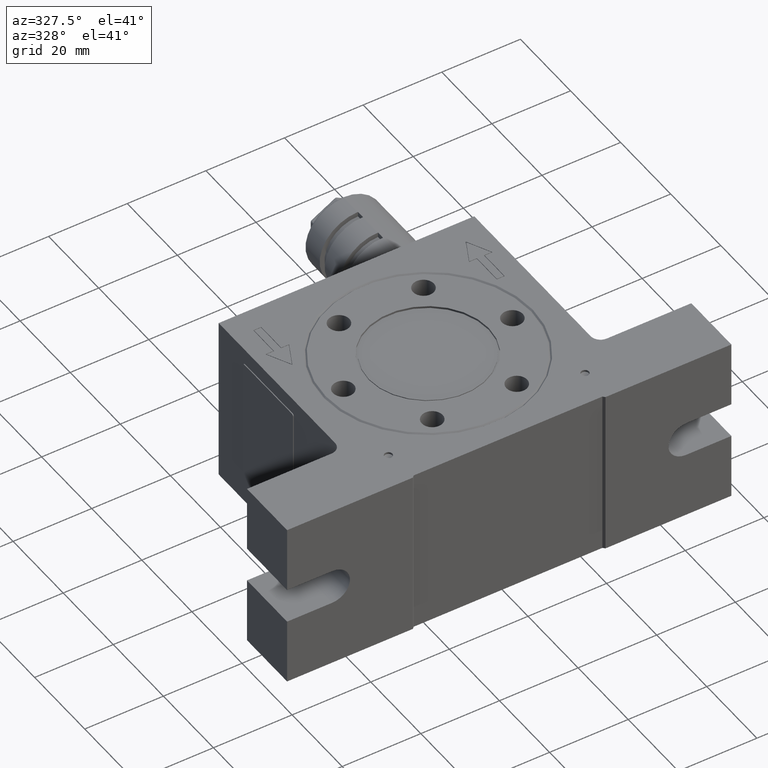
[diagram: clean part render]
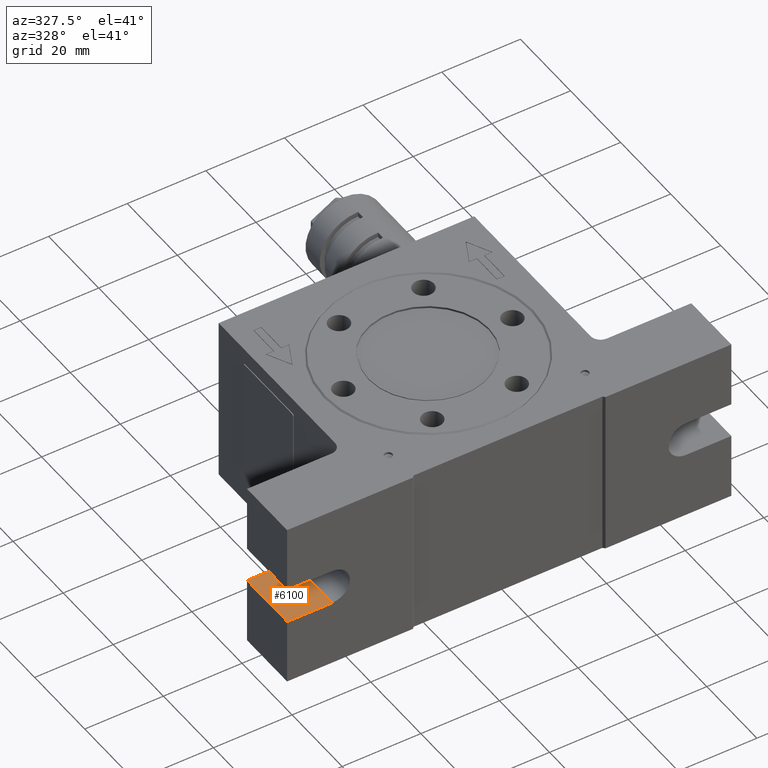
[diagram: same view with one face highlighted and labeled with its STEP entity id]
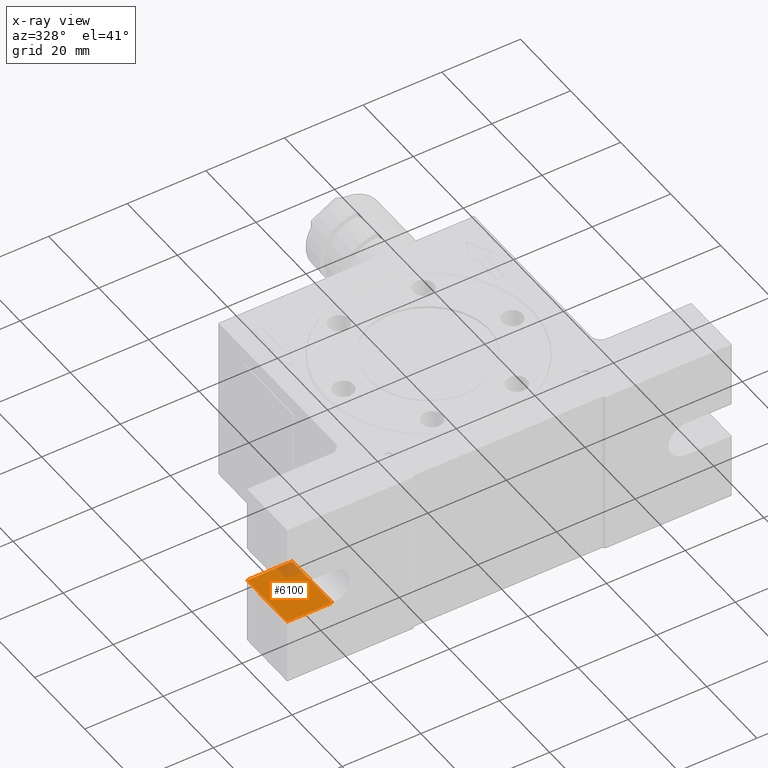
[diagram: x-ray of the same camera — body ghosted, the highlighted face saturated]
A machine part, auxiliary view. The second image highlights one B-rep face of the part: STEP entity #6100.
The next image is the same camera in x-ray: the body ghosted, the highlighted face saturated — about 9% of this face is hidden behind the body in this view.
In plain terms, the highlighted planar face has unit normal (-0, 0, -1).
Its self-contained STEP definition (entity closure, byte-faithful):
#512 = LINE ( 'NONE', #13274, #11323 ) ;
#1461 = LINE ( 'NONE', #18088, #3803 ) ;
#1509 = EDGE_CURVE ( 'NONE', #11593, #17335, #8410, .T. ) ;
#1646 = DIRECTION ( 'NONE',  ( -1.000000000000000000, 0.0000000000000000000, 7.542275982507860100E-016 ) ) ;
#2403 = CARTESIAN_POINT ( 'NONE',  ( -56.50000000000000000, -32.50000000000000000, -4.500000000000000000 ) ) ;
#2848 = VECTOR ( 'NONE', #4886, 1000.000000000000000 ) ;
#3439 = CARTESIAN_POINT ( 'NONE',  ( -56.50000000000000000, -16.50000000000000000, -4.500000000000000000 ) ) ;
#3803 = VECTOR ( 'NONE', #1646, 1000.000000000000000 ) ;
#4101 = FACE_OUTER_BOUND ( 'NONE', #16517, .T. ) ;
#4616 = DIRECTION ( 'NONE',  ( -1.000000000000000000, 0.0000000000000000000, 7.542275982507860100E-016 ) ) ;
#4692 = CARTESIAN_POINT ( 'NONE',  ( -56.50000000000000000, -32.50000000000000000, -4.500000000000000000 ) ) ;
#4886 = DIRECTION ( 'NONE',  ( 0.0000000000000000000, 1.000000000000000000, 0.0000000000000000000 ) ) ;
#5118 = DIRECTION ( 'NONE',  ( 0.0000000000000000000, 1.000000000000000000, 0.0000000000000000000 ) ) ;
#6100 = ADVANCED_FACE ( 'NONE', ( #4101 ), #11176, .F. ) ;
#7873 = CARTESIAN_POINT ( 'NONE',  ( -45.00000000000000000, -16.50000000000000000, -4.500000000000000000 ) ) ;
#7970 = ORIENTED_EDGE ( 'NONE', *, *, #18473, .F. ) ;
#8410 = LINE ( 'NONE', #3439, #14832 ) ;
#8954 = AXIS2_PLACEMENT_3D ( 'NONE', #4692, #11330, #4616 ) ;
#9478 = ORIENTED_EDGE ( 'NONE', *, *, #15416, .T. ) ;
#9729 = CARTESIAN_POINT ( 'NONE',  ( -56.50000000000000000, -32.50000000000000000, -4.500000000000000000 ) ) ;
#11176 = PLANE ( 'NONE',  #8954 ) ;
#11323 = VECTOR ( 'NONE', #5118, 1000.000000000000000 ) ;
#11330 = DIRECTION ( 'NONE',  ( -7.542275982507860100E-016, 0.0000000000000000000, -1.000000000000000000 ) ) ;
#11593 = VERTEX_POINT ( 'NONE', #7873 ) ;
#12950 = ORIENTED_EDGE ( 'NONE', *, *, #1509, .T. ) ;
#13272 = DIRECTION ( 'NONE',  ( -1.000000000000000000, 0.0000000000000000000, 7.542275982507860100E-016 ) ) ;
#13274 = CARTESIAN_POINT ( 'NONE',  ( -45.00000000000000000, -32.50000000000000000, -4.500000000000000000 ) ) ;
#14832 = VECTOR ( 'NONE', #13272, 1000.000000000000000 ) ;
#14918 = ORIENTED_EDGE ( 'NONE', *, *, #20842, .F. ) ;
#15416 = EDGE_CURVE ( 'NONE', #20016, #11593, #512, .T. ) ;
#16135 = VERTEX_POINT ( 'NONE', #2403 ) ;
#16517 = EDGE_LOOP ( 'NONE', ( #12950, #14918, #7970, #9478 ) ) ;
#16531 = LINE ( 'NONE', #9729, #2848 ) ;
#17335 = VERTEX_POINT ( 'NONE', #20246 ) ;
#18088 = CARTESIAN_POINT ( 'NONE',  ( -56.50000000000000000, -32.50000000000000000, -4.500000000000000000 ) ) ;
#18473 = EDGE_CURVE ( 'NONE', #20016, #16135, #1461, .T. ) ;
#20016 = VERTEX_POINT ( 'NONE', #20784 ) ;
#20246 = CARTESIAN_POINT ( 'NONE',  ( -56.50000000000000000, -16.50000000000000000, -4.500000000000000000 ) ) ;
#20784 = CARTESIAN_POINT ( 'NONE',  ( -45.00000000000000000, -32.50000000000000000, -4.500000000000000000 ) ) ;
#20842 = EDGE_CURVE ( 'NONE', #16135, #17335, #16531, .T. ) ;